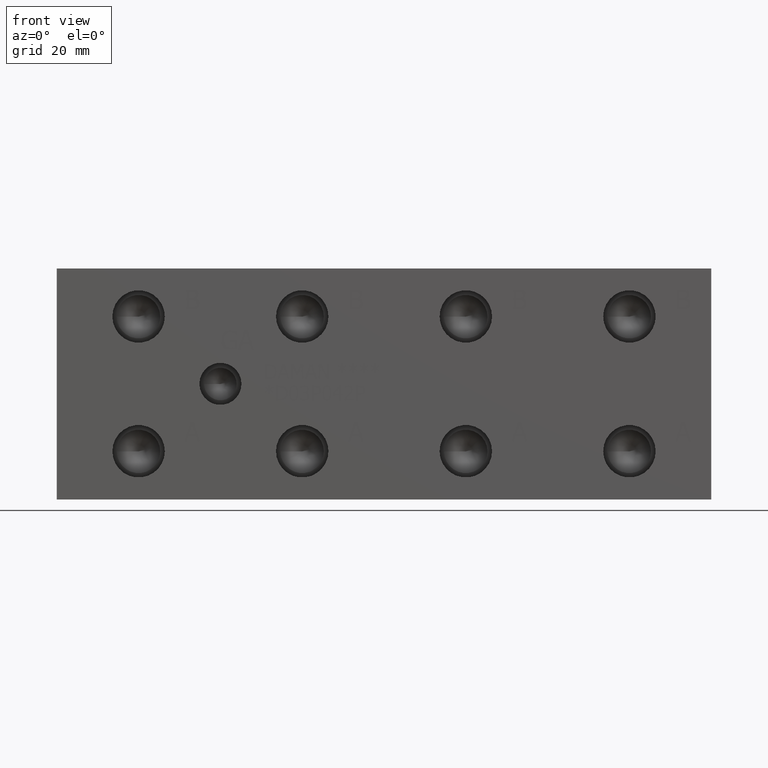
[diagram: clean part render]
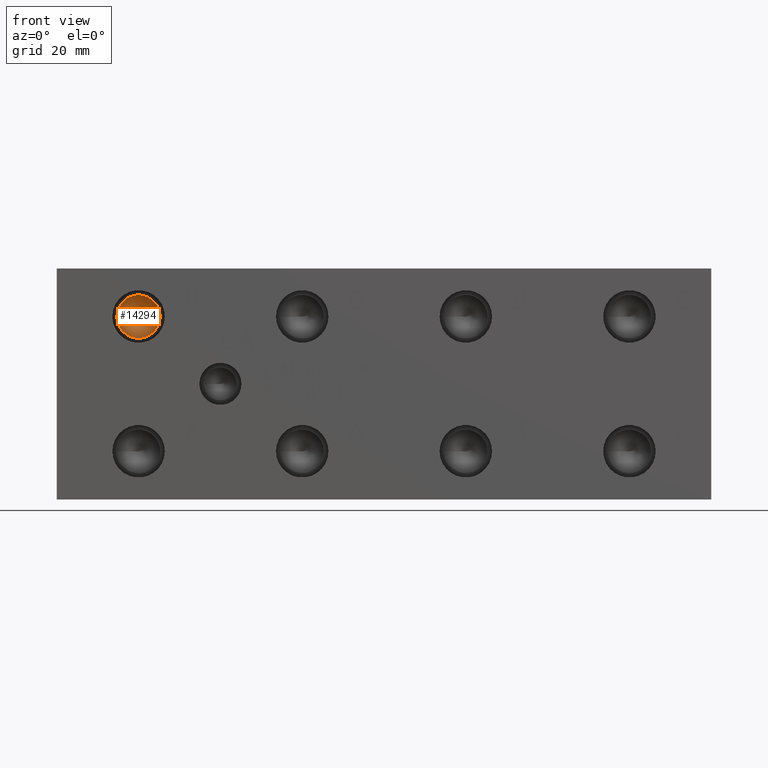
[diagram: same view with one face highlighted and labeled with its STEP entity id]
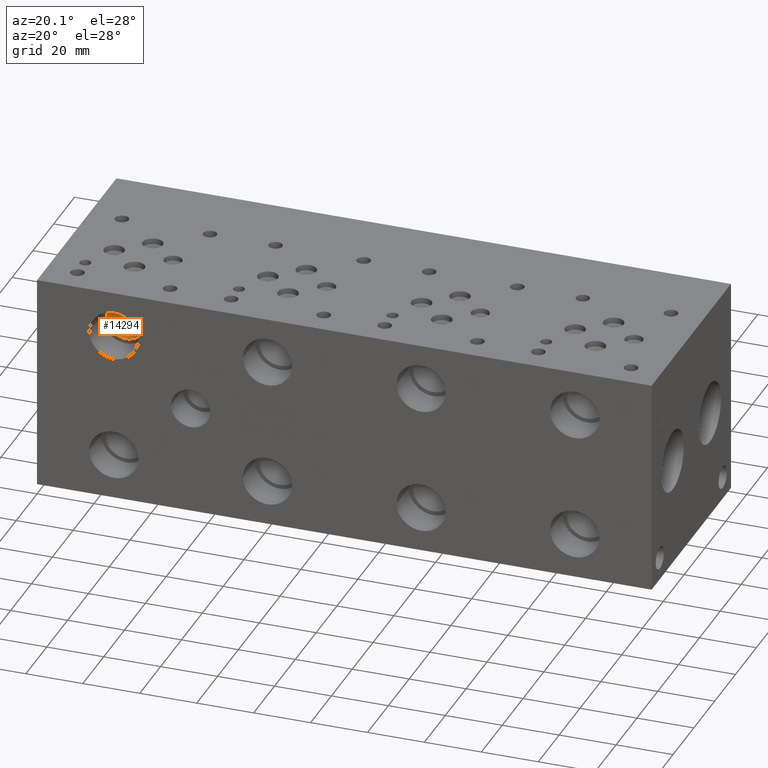
[diagram: same view with one face highlighted and labeled with its STEP entity id]
A machine part, front view. The second image highlights one B-rep face of the part: STEP entity #14294.
A second angle (auxiliary view) of the same face is appended — the face is thin or edge-on in the first view.
In plain terms, the highlighted conical surface has half-angle 60 deg.
Its self-contained STEP definition (entity closure, byte-faithful):
#144=CONICAL_SURFACE('',#15121,3.57505,1.0471975511966);
#407=CIRCLE('',#15122,7.1501);
#408=CIRCLE('',#15123,7.1501);
#1719=FACE_OUTER_BOUND('',#2551,.T.);
#2551=EDGE_LOOP('',(#12540,#12541,#12542,#12543));
#3923=LINE('',#24402,#5229);
#5229=VECTOR('',#18021,3.57505);
#6910=VERTEX_POINT('',#24398);
#6911=VERTEX_POINT('',#24399);
#6912=VERTEX_POINT('',#24401);
#8847=EDGE_CURVE('',#6910,#6911,#407,.T.);
#8848=EDGE_CURVE('',#6911,#6912,#3923,.T.);
#8849=EDGE_CURVE('',#6911,#6910,#408,.T.);
#12540=ORIENTED_EDGE('',*,*,#8847,.T.);
#12541=ORIENTED_EDGE('',*,*,#8848,.T.);
#12542=ORIENTED_EDGE('',*,*,#8848,.F.);
#12543=ORIENTED_EDGE('',*,*,#8849,.T.);
#14294=ADVANCED_FACE('',(#1719),#144,.F.);
#15121=AXIS2_PLACEMENT_3D('',#24397,#18017,#18018);
#15122=AXIS2_PLACEMENT_3D('',#24400,#18019,#18020);
#15123=AXIS2_PLACEMENT_3D('',#24403,#18022,#18023);
#18017=DIRECTION('center_axis',(0.,-1.,0.));
#18018=DIRECTION('ref_axis',(1.,0.,0.));
#18019=DIRECTION('center_axis',(0.,-1.,0.));
#18020=DIRECTION('ref_axis',(1.,0.,0.));
#18021=DIRECTION('',(0.866025403784439,0.5,1.06057523872491E-16));
#18022=DIRECTION('center_axis',(0.,-1.,0.));
#18023=DIRECTION('ref_axis',(1.,0.,0.));
#24397=CARTESIAN_POINT('Origin',(26.9748,14.2116660798664,60.325));
#24398=CARTESIAN_POINT('',(34.1249,12.14761,60.325));
#24399=CARTESIAN_POINT('',(19.8247,12.14761,60.325));
#24400=CARTESIAN_POINT('Origin',(26.9748,12.14761,60.325));
#24401=CARTESIAN_POINT('',(26.9748,16.2757221597327,60.325));
#24402=CARTESIAN_POINT('',(23.39975,14.2116660798664,60.325));
#24403=CARTESIAN_POINT('Origin',(26.9748,12.14761,60.325));